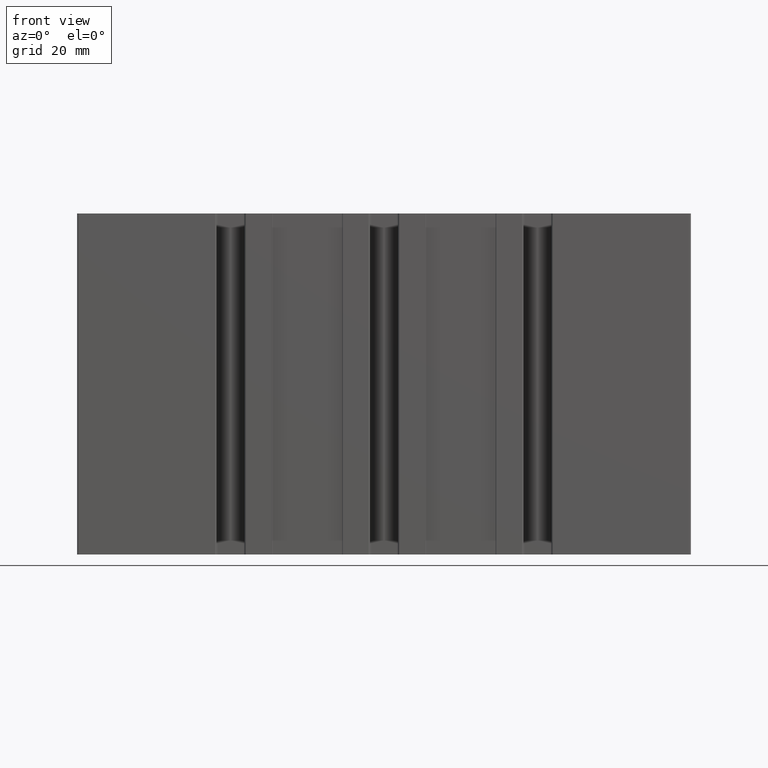
[diagram: clean part render]
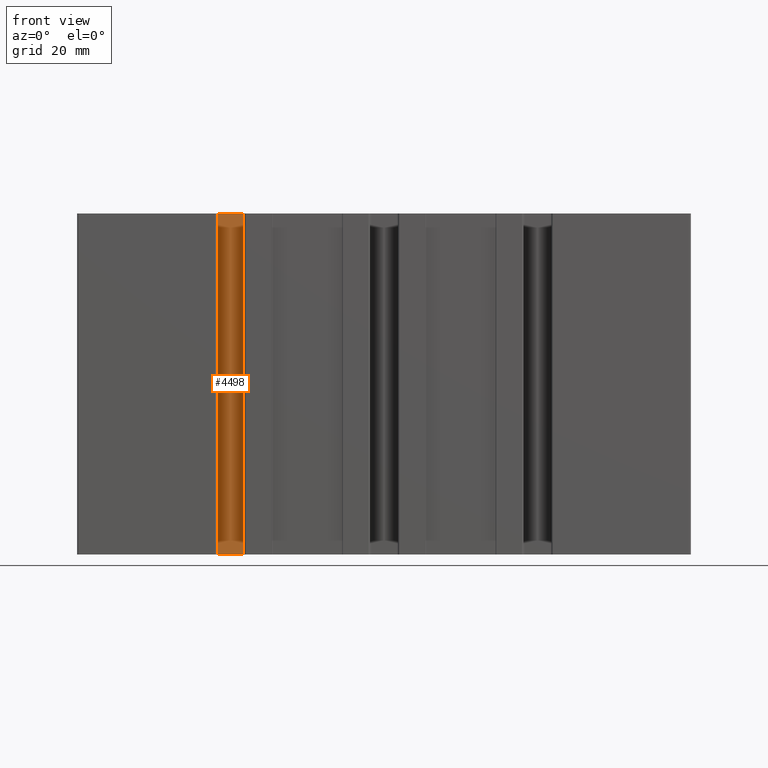
[diagram: same view with one face highlighted and labeled with its STEP entity id]
A machine part, front view. The second image highlights one B-rep face of the part: STEP entity #4498.
In plain terms, the highlighted planar face has unit normal (0, -1, 0).
Its self-contained STEP definition (entity closure, byte-faithful):
#67=PLANE('',#4940);
#240=FACE_OUTER_BOUND('',#484,.T.);
#484=EDGE_LOOP('',(#3499,#3500,#3501,#3502));
#717=LINE('',#6826,#1158);
#855=LINE('',#7348,#1296);
#858=LINE('',#7357,#1299);
#860=LINE('',#7360,#1301);
#1158=VECTOR('',#5386,10.);
#1296=VECTOR('',#5910,10.);
#1299=VECTOR('',#5919,10.);
#1301=VECTOR('',#5923,10.);
#1890=VERTEX_POINT('',#6823);
#1891=VERTEX_POINT('',#6825);
#2081=VERTEX_POINT('',#7344);
#2085=VERTEX_POINT('',#7355);
#2366=EDGE_CURVE('',#1890,#1891,#717,.T.);
#2628=EDGE_CURVE('',#1891,#2081,#855,.T.);
#2632=EDGE_CURVE('',#2085,#1890,#858,.T.);
#2634=EDGE_CURVE('',#2085,#2081,#860,.T.);
#3499=ORIENTED_EDGE('',*,*,#2628,.F.);
#3500=ORIENTED_EDGE('',*,*,#2366,.F.);
#3501=ORIENTED_EDGE('',*,*,#2632,.F.);
#3502=ORIENTED_EDGE('',*,*,#2634,.T.);
#4498=ADVANCED_FACE('',(#240),#67,.T.);
#4940=AXIS2_PLACEMENT_3D('',#7359,#5921,#5922);
#5386=DIRECTION('',(1.,4.20128052149173E-17,0.));
#5910=DIRECTION('',(0.,0.,-1.));
#5919=DIRECTION('',(0.,0.,1.));
#5921=DIRECTION('center_axis',(4.20128052149173E-17,-1.,0.));
#5922=DIRECTION('ref_axis',(1.,4.20128052149173E-17,0.));
#5923=DIRECTION('',(1.,4.20128052149173E-17,0.));
#6823=CARTESIAN_POINT('',(-48.75,-14.6,100.));
#6825=CARTESIAN_POINT('',(-41.25,-14.6,100.));
#6826=CARTESIAN_POINT('',(-51.75,-14.6,100.));
#7344=CARTESIAN_POINT('',(-41.25,-14.6,0.));
#7348=CARTESIAN_POINT('',(-41.25,-14.6,0.));
#7355=CARTESIAN_POINT('',(-48.75,-14.6,0.));
#7357=CARTESIAN_POINT('',(-48.75,-14.6,0.));
#7359=CARTESIAN_POINT('Origin',(-51.75,-14.6,0.));
#7360=CARTESIAN_POINT('',(-51.75,-14.6,0.));